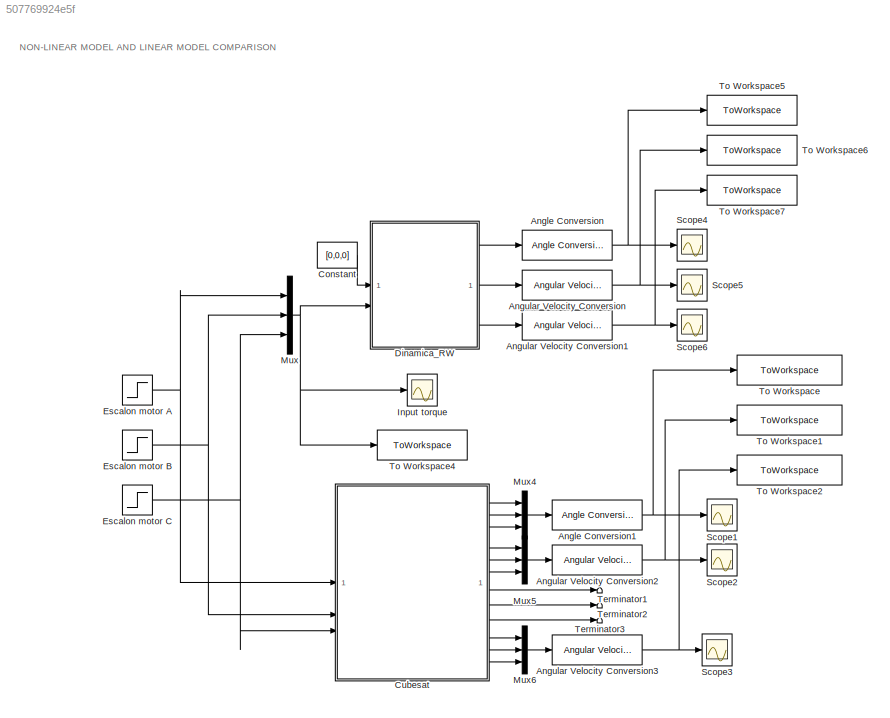
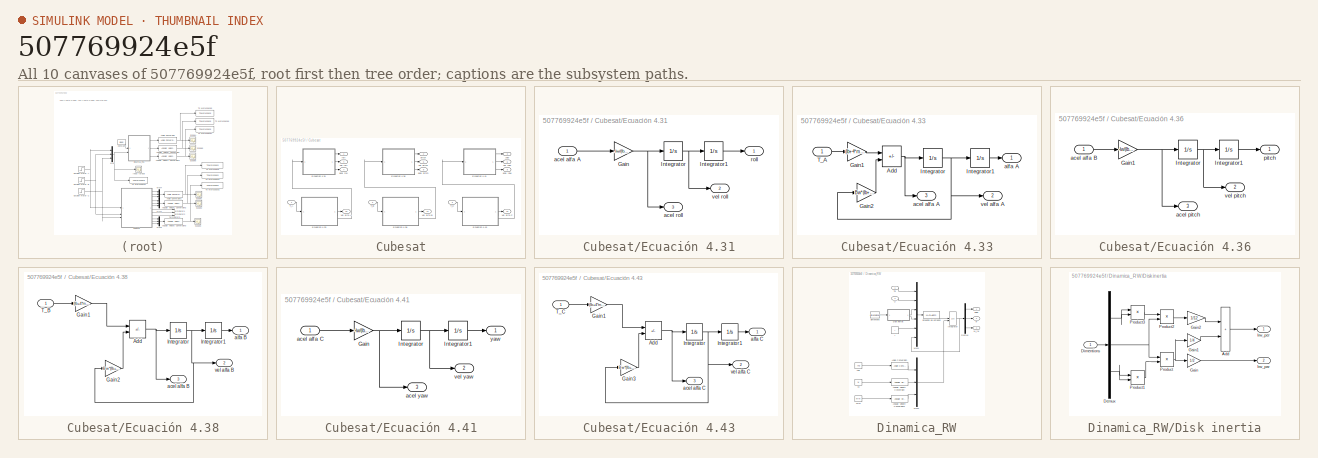
[diagram: thumbnail index - all 10 canvases of the model, root first then tree order]
MODEL slx_507769924e5f
KIND model
CONFIG AbsTol = auto
CONFIG EnableMultiTasking = off
CONFIG FixedStep = auto
CONFIG MaxStep = auto
CONFIG MinStep = auto
CONFIG RelTol = 1e-3
CONFIG SampleTimeConstraint = Unconstrained
CONFIG SolverName = VariableStepAuto
CONFIG StartTime = 0.0
CONFIG StopTime = 10.0
BLOCK [Reference] Angle Conversion  REF=aerolibconvert2/Angle Conversion
  SourceBlock = aerolibconvert2/Angle Conversion
  SourceType = Angle Conversion
BLOCK [Reference] Angle Conversion1  REF=aerolibconvert2/Angle Conversion
  SourceBlock = aerolibconvert2/Angle Conversion
  SourceType = Angle Conversion
BLOCK [Reference] Angular Velocity Conversion  REF=aerolibconvert2/Angular Velocity
Conversion
  SourceBlock = aerolibconvert2/Angular Velocity\nConversion
  SourceType = Angular Velocity Conversion
BLOCK [Reference] Angular Velocity Conversion1  REF=aerolibconvert2/Angular Velocity
Conversion
  SourceBlock = aerolibconvert2/Angular Velocity\nConversion
  SourceType = Angular Velocity Conversion
BLOCK [Reference] Angular Velocity Conversion2  REF=aerolibconvert2/Angular Velocity
Conversion
  SourceBlock = aerolibconvert2/Angular Velocity\nConversion
  SourceType = Angular Velocity Conversion
BLOCK [Reference] Angular Velocity Conversion3  REF=aerolibconvert2/Angular Velocity
Conversion
  SourceBlock = aerolibconvert2/Angular Velocity\nConversion
  SourceType = Angular Velocity Conversion
BLOCK [Constant] Constant
  Value = [0,0,0]
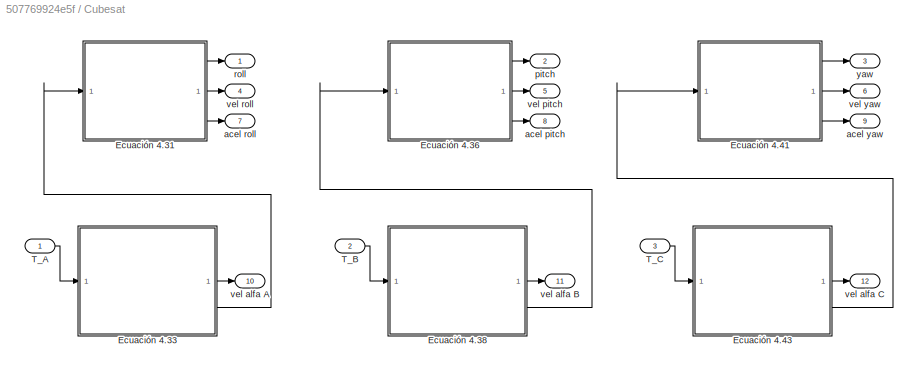
BLOCK [SubSystem] Cubesat
BLOCK [SubSystem] Cubesat/Ecuación 4.31
BLOCK [Gain] Cubesat/Ecuación 4.31/Gain
  Gain = -Iw/(Ib+4*mw*(lw)^2+Iw)
BLOCK [Integrator] Cubesat/Ecuación 4.31/Integrator
BLOCK [Integrator] Cubesat/Ecuación 4.31/Integrator1
BLOCK [Inport] Cubesat/Ecuación 4.31/acel alfa A
BLOCK [Outport] Cubesat/Ecuación 4.31/acel roll
  Port = 3
BLOCK [Outport] Cubesat/Ecuación 4.31/roll
BLOCK [Outport] Cubesat/Ecuación 4.31/vel roll
  Port = 2
BLOCK [SubSystem] Cubesat/Ecuación 4.33
BLOCK [Sum] Cubesat/Ecuación 4.33/Add
  IconShape = rectangular
  Inputs = +-
BLOCK [Gain] Cubesat/Ecuación 4.33/Gain1
  Gain = (Ib+4*mw*(lw)^2+Iw)/(Iw*(Ib+4*mw*(lw)^2))
BLOCK [Gain] Cubesat/Ecuación 4.33/Gain2
  Gain = Bw*(Ib+4*mw*(lw)^2+Iw)/(Iw*(Ib+4*mw*(lw)^2))
BLOCK [Integrator] Cubesat/Ecuación 4.33/Integrator
BLOCK [Integrator] Cubesat/Ecuación 4.33/Integrator1
BLOCK [Inport] Cubesat/Ecuación 4.33/T_A
BLOCK [Outport] Cubesat/Ecuación 4.33/acel alfa A
  Port = 3
BLOCK [Outport] Cubesat/Ecuación 4.33/alfa A
BLOCK [Outport] Cubesat/Ecuación 4.33/vel alfa A
  Port = 2
BLOCK [SubSystem] Cubesat/Ecuación 4.36
BLOCK [Gain] Cubesat/Ecuación 4.36/Gain1
  Gain = -Iw/(Ib+4*mw*(lw)^2+Iw)
BLOCK [Integrator] Cubesat/Ecuación 4.36/Integrator
BLOCK [Integrator] Cubesat/Ecuación 4.36/Integrator1
BLOCK [Inport] Cubesat/Ecuación 4.36/acel alfa B
BLOCK [Outport] Cubesat/Ecuación 4.36/acel pitch
  Port = 3
BLOCK [Outport] Cubesat/Ecuación 4.36/pitch
BLOCK [Outport] Cubesat/Ecuación 4.36/vel pitch
  Port = 2
BLOCK [SubSystem] Cubesat/Ecuación 4.38
BLOCK [Sum] Cubesat/Ecuación 4.38/Add
  IconShape = rectangular
  Inputs = +-
BLOCK [Gain] Cubesat/Ecuación 4.38/Gain1
  Gain = (Ib+4*mw*(lw)^2+Iw)/(Iw*(Ib+4*mw*(lw)^2))
BLOCK [Gain] Cubesat/Ecuación 4.38/Gain2
  Gain = Bw*(Ib+4*mw*(lw)^2+Iw)/(Iw*(Ib+4*mw*(lw)^2))
BLOCK [Integrator] Cubesat/Ecuación 4.38/Integrator
BLOCK [Integrator] Cubesat/Ecuación 4.38/Integrator1
BLOCK [Inport] Cubesat/Ecuación 4.38/T_B
BLOCK [Outport] Cubesat/Ecuación 4.38/acel alfa B
  Port = 3
BLOCK [Outport] Cubesat/Ecuación 4.38/alfa B
BLOCK [Outport] Cubesat/Ecuación 4.38/vel alfa B
  Port = 2
BLOCK [SubSystem] Cubesat/Ecuación 4.41
BLOCK [Gain] Cubesat/Ecuación 4.41/Gain
  Gain = -Iw/(Ib+4*mw*(lw)^2+Iw)
BLOCK [Integrator] Cubesat/Ecuación 4.41/Integrator
BLOCK [Integrator] Cubesat/Ecuación 4.41/Integrator1
BLOCK [Inport] Cubesat/Ecuación 4.41/acel alfa C
BLOCK [Outport] Cubesat/Ecuación 4.41/acel yaw
  Port = 3
BLOCK [Outport] Cubesat/Ecuación 4.41/vel yaw
  Port = 2
BLOCK [Outport] Cubesat/Ecuación 4.41/yaw
BLOCK [SubSystem] Cubesat/Ecuación 4.43
BLOCK [Sum] Cubesat/Ecuación 4.43/Add
  IconShape = rectangular
  Inputs = +-
BLOCK [Gain] Cubesat/Ecuación 4.43/Gain1
  Gain = (Ib+4*mw*(lw)^2+Iw)/(Iw*(Ib+4*mw*(lw)^2))
BLOCK [Gain] Cubesat/Ecuación 4.43/Gain3
  Gain = Bw*(Ib+4*mw*(lw)^2+Iw)/(Iw*(Ib+4*mw*(lw)^2))
BLOCK [Integrator] Cubesat/Ecuación 4.43/Integrator
BLOCK [Integrator] Cubesat/Ecuación 4.43/Integrator1
BLOCK [Inport] Cubesat/Ecuación 4.43/T_C
BLOCK [Outport] Cubesat/Ecuación 4.43/acel alfa C
  Port = 3
BLOCK [Outport] Cubesat/Ecuación 4.43/alfa C
BLOCK [Outport] Cubesat/Ecuación 4.43/vel alfa C
  Port = 2
BLOCK [Inport] Cubesat/T_A
BLOCK [Inport] Cubesat/T_B
  Port = 2
BLOCK [Inport] Cubesat/T_C
  Port = 3
BLOCK [Outport] Cubesat/acel pitch
  Port = 8
BLOCK [Outport] Cubesat/acel roll
  Port = 7
BLOCK [Outport] Cubesat/acel yaw
  Port = 9
BLOCK [Outport] Cubesat/pitch
  Port = 2
BLOCK [Outport] Cubesat/roll
BLOCK [Outport] Cubesat/vel alfa A
  Port = 10
BLOCK [Outport] Cubesat/vel alfa B
  Port = 11
BLOCK [Outport] Cubesat/vel alfa C
  Port = 12
BLOCK [Outport] Cubesat/vel pitch
  Port = 5
BLOCK [Outport] Cubesat/vel roll
  Port = 4
BLOCK [Outport] Cubesat/vel yaw
  Port = 6
BLOCK [Outport] Cubesat/yaw
  Port = 3
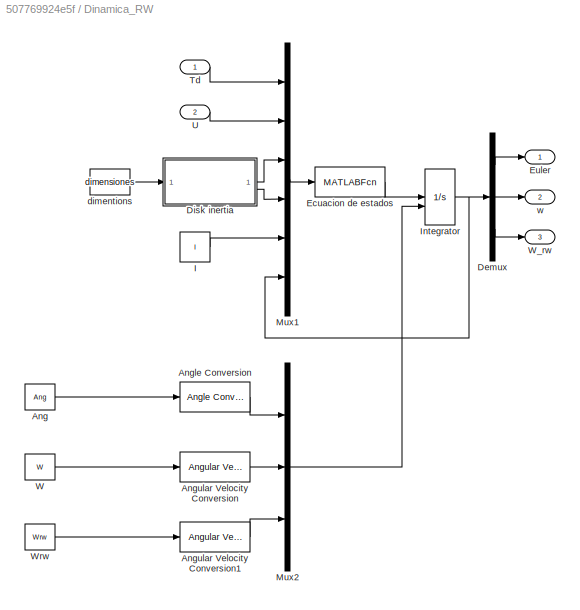
BLOCK [SubSystem] Dinamica_RW
BLOCK [Constant] Dinamica_RW/Ang
  Value = Ang
BLOCK [Reference] Dinamica_RW/Angle Conversion  REF=aerolibconvert2/Angle Conversion
  SourceBlock = aerolibconvert2/Angle Conversion
  SourceType = Angle Conversion
BLOCK [Reference] Dinamica_RW/Angular Velocity Conversion  REF=aerolibconvert2/Angular Velocity
Conversion
  SourceBlock = aerolibconvert2/Angular Velocity\nConversion
  SourceType = Angular Velocity Conversion
BLOCK [Reference] Dinamica_RW/Angular Velocity Conversion1  REF=aerolibconvert2/Angular Velocity
Conversion
  SourceBlock = aerolibconvert2/Angular Velocity\nConversion
  SourceType = Angular Velocity Conversion
BLOCK [Demux] Dinamica_RW/Demux
  Outputs = 3
BLOCK [SubSystem] Dinamica_RW/Disk inertia
  NameLocation = top
BLOCK [Sum] Dinamica_RW/Disk inertia/Add
  IconShape = rectangular
BLOCK [Demux] Dinamica_RW/Disk inertia/Demux
  Outputs = 3
BLOCK [Inport] Dinamica_RW/Disk inertia/Dimentions
BLOCK [Gain] Dinamica_RW/Disk inertia/Gain
  Gain = 1/2
BLOCK [Gain] Dinamica_RW/Disk inertia/Gain1
  Gain = 1/4
BLOCK [Gain] Dinamica_RW/Disk inertia/Gain2
  Gain = 1/12
BLOCK [Outport] Dinamica_RW/Disk inertia/Irw_par
  Port = 2
BLOCK [Outport] Dinamica_RW/Disk inertia/Irw_per
BLOCK [Product] Dinamica_RW/Disk inertia/Product
BLOCK [Product] Dinamica_RW/Disk inertia/Product1
BLOCK [Product] Dinamica_RW/Disk inertia/Product2
BLOCK [Product] Dinamica_RW/Disk inertia/Product3
BLOCK [MATLABFcn] Dinamica_RW/Ecuacion de estados
  MATLABFcn = Equation_state_Euler
BLOCK [Outport] Dinamica_RW/Euler
BLOCK [Constant] Dinamica_RW/I
  Value = I
BLOCK [Integrator] Dinamica_RW/Integrator
  InitialCondition = InitialCondition
  InitialConditionSource = external
BLOCK [Mux] Dinamica_RW/Mux1
  DisplayOption = bar
  Inputs = 6
BLOCK [Mux] Dinamica_RW/Mux2
  DisplayOption = bar
  Inputs = 3
BLOCK [Inport] Dinamica_RW/Td
BLOCK [Inport] Dinamica_RW/U
  Port = 2
BLOCK [Constant] Dinamica_RW/W
  Value = W
BLOCK [Outport] Dinamica_RW/W_rw
  Port = 3
BLOCK [Constant] Dinamica_RW/Wrw
  Value = Wrw
BLOCK [Constant] Dinamica_RW/dimentions
  Value = dimensiones
BLOCK [Outport] Dinamica_RW/w 
  Port = 2
BLOCK [Step] Escalon motor A
  After = 0
  Before = 0.007
  SampleTime = 0.01
BLOCK [Step] Escalon motor B
  After = 0
  SampleTime = 0.01
BLOCK [Step] Escalon motor C
  After = 0
  SampleTime = 0.01
BLOCK [Scope] Input torque
  Floating = off
  NumInputPorts = 1
  ScopeSpecificationString = Simulink.scopes.TimeScopeBlockCfg('CurrentConfiguration', extmgr.ConfigurationSet(extmgr.Configuration('Core','General UI',true),extmgr.Configuration('Core','Source UI',true),extmgr.Configuration('Sources','WiredSimulink',true,'DataLoggingVariableName','ScopeData3','DataLogging',true),extmgr.Configuration('Visuals','Time Domain',true,'SerializedDisplays',{struct('MinYLimReal','-0.00000012','MaxYLi...<+1615ch>
BLOCK [Mux] Mux
  DisplayOption = bar
  Inputs = 3
BLOCK [Mux] Mux4
  DisplayOption = bar
  Inputs = 3
BLOCK [Mux] Mux5
  DisplayOption = bar
  Inputs = 3
BLOCK [Mux] Mux6
  DisplayOption = bar
  Inputs = 3
BLOCK [Scope] Scope1
  Floating = off
  NumInputPorts = 1
  ScopeSpecificationString = Simulink.scopes.TimeScopeBlockCfg('CurrentConfiguration', extmgr.ConfigurationSet(extmgr.Configuration('Core','General UI',true),extmgr.Configuration('Core','Source UI',true),extmgr.Configuration('Sources','WiredSimulink',true,'DataLoggingVariableName','ScopeData4','DataLogging',true),extmgr.Configuration('Visuals','Time Domain',true,'SerializedDisplays',{struct('MinYLimReal','-416.8159','MaxYLimR...<+1713ch>
BLOCK [Scope] Scope2
  Floating = off
  NumInputPorts = 1
  ScopeSpecificationString = Simulink.scopes.TimeScopeBlockCfg('CurrentConfiguration', extmgr.ConfigurationSet(extmgr.Configuration('Core','General UI',true),extmgr.Configuration('Core','Source UI',true),extmgr.Configuration('Sources','WiredSimulink',true,'DataLoggingVariableName','ScopeData5','DataLogging',true),extmgr.Configuration('Visuals','Time Domain',true,'SerializedDisplays',{struct('MinYLimReal','-13.67977','MaxYLimR...<+1506ch>
BLOCK [Scope] Scope3
  Floating = off
  NumInputPorts = 1
  ScopeSpecificationString = Simulink.scopes.TimeScopeBlockCfg('CurrentConfiguration', extmgr.ConfigurationSet(extmgr.Configuration('Core','General UI',true),extmgr.Configuration('Core','Source UI',true),extmgr.Configuration('Sources','WiredSimulink',true,'DataLoggingVariableName','ScopeData6','DataLogging',true,'DataLoggingLimitDataPoints',true),extmgr.Configuration('Visuals','Time Domain',true,'SerializedDisplays',{struct('...<+1529ch>
BLOCK [Scope] Scope4
  Floating = off
  NumInputPorts = 1
  ScopeSpecificationString = Simulink.scopes.TimeScopeBlockCfg('CurrentConfiguration', extmgr.ConfigurationSet(extmgr.Configuration('Core','General UI',true),extmgr.Configuration('Core','Source UI',true),extmgr.Configuration('Sources','WiredSimulink',true,'DataLoggingVariableName','ScopeData8','DataLogging',true),extmgr.Configuration('Visuals','Time Domain',true,'SerializedDisplays',{struct('MinYLimReal','-535.60179','MaxYLim...<+1945ch>
BLOCK [Scope] Scope5
  Floating = off
  NumInputPorts = 1
  ScopeSpecificationString = Simulink.scopes.TimeScopeBlockCfg('CurrentConfiguration', extmgr.ConfigurationSet(extmgr.Configuration('Core','General UI',true),extmgr.Configuration('Core','Source UI',true),extmgr.Configuration('Sources','WiredSimulink',true,'DataLoggingVariableName','ScopeData9','DataLogging',true),extmgr.Configuration('Visuals','Time Domain',true,'SerializedDisplays',{struct('MinYLimReal','-13.67977','MaxYLimR...<+1484ch>
BLOCK [Scope] Scope6
  Floating = off
  NumInputPorts = 1
  ScopeSpecificationString = Simulink.scopes.TimeScopeBlockCfg('CurrentConfiguration', extmgr.ConfigurationSet(extmgr.Configuration('Core','General UI',true),extmgr.Configuration('Core','Source UI',true),extmgr.Configuration('Sources','WiredSimulink',true,'DataLoggingVariableName','ScopeData10','DataLogging',true,'DataLoggingLimitDataPoints',true),extmgr.Configuration('Visuals','Time Domain',true,'SerializedDisplays',{struct(...<+1530ch>
BLOCK [Terminator] Terminator1
BLOCK [Terminator] Terminator2
BLOCK [Terminator] Terminator3
BLOCK [ToWorkspace] To Workspace
  FixptAsFi = on
  MaxDataPoints = inf
  SampleTime = -1
  VariableName = Euler
BLOCK [ToWorkspace] To Workspace1
  FixptAsFi = on
  MaxDataPoints = inf
  SampleTime = -1
  VariableName = angularRate
BLOCK [ToWorkspace] To Workspace2
  FixptAsFi = on
  MaxDataPoints = inf
  SampleTime = -1
  VariableName = RwRate
BLOCK [ToWorkspace] To Workspace4
  FixptAsFi = on
  MaxDataPoints = inf
  SampleTime = -1
  VariableName = Torque
BLOCK [ToWorkspace] To Workspace5
  FixptAsFi = on
  MaxDataPoints = inf
  SampleTime = -1
  VariableName = nonLinearEuler
BLOCK [ToWorkspace] To Workspace6
  FixptAsFi = on
  MaxDataPoints = inf
  SampleTime = -1
  VariableName = nonLinearRates
BLOCK [ToWorkspace] To Workspace7
  FixptAsFi = on
  MaxDataPoints = inf
  SampleTime = -1
  VariableName = nonLinearRwRates
ANNOTATION (root): NON-LINEAR MODEL AND LINEAR MODEL COMPARISON
NET Angle Conversion1:1 -> Scope1:1, To Workspace:1
NET Angle Conversion:1 -> Scope4:1, To Workspace5:1
NET Angular Velocity Conversion1:1 -> Scope6:1, To Workspace7:1
NET Angular Velocity Conversion2:1 -> Scope2:1, To Workspace1:1
NET Angular Velocity Conversion3:1 -> Scope3:1, To Workspace2:1
NET Angular Velocity Conversion:1 -> Scope5:1, To Workspace6:1
LINE Constant:1 -> Dinamica_RW:1
NET Cubesat/Ecuación 4.31/Gain:1 -> Cubesat/Ecuación 4.31/Integrator:1, Cubesat/Ecuación 4.31/acel roll:1
LINE Cubesat/Ecuación 4.31/Integrator1:1 -> Cubesat/Ecuación 4.31/roll:1
NET Cubesat/Ecuación 4.31/Integrator:1 -> Cubesat/Ecuación 4.31/Integrator1:1, Cubesat/Ecuación 4.31/vel roll:1
LINE Cubesat/Ecuación 4.31/acel alfa A:1 -> Cubesat/Ecuación 4.31/Gain:1
LINE Cubesat/Ecuación 4.31:1 -> Cubesat/roll:1
LINE Cubesat/Ecuación 4.31:2 -> Cubesat/vel roll:1
LINE Cubesat/Ecuación 4.31:3 -> Cubesat/acel roll:1
NET Cubesat/Ecuación 4.33/Add:1 -> Cubesat/Ecuación 4.33/Integrator:1, Cubesat/Ecuación 4.33/acel alfa A:1
LINE Cubesat/Ecuación 4.33/Gain1:1 -> Cubesat/Ecuación 4.33/Add:1
LINE Cubesat/Ecuación 4.33/Gain2:1 -> Cubesat/Ecuación 4.33/Add:2
LINE Cubesat/Ecuación 4.33/Integrator1:1 -> Cubesat/Ecuación 4.33/alfa A:1
NET Cubesat/Ecuación 4.33/Integrator:1 -> Cubesat/Ecuación 4.33/Gain2:1, Cubesat/Ecuación 4.33/Integrator1:1, Cubesat/Ecuación 4.33/vel alfa A:1
LINE Cubesat/Ecuación 4.33/T_A:1 -> Cubesat/Ecuación 4.33/Gain1:1
LINE Cubesat/Ecuación 4.33:2 -> Cubesat/vel alfa A:1
LINE Cubesat/Ecuación 4.33:3 -> Cubesat/Ecuación 4.31:1
NET Cubesat/Ecuación 4.36/Gain1:1 -> Cubesat/Ecuación 4.36/Integrator:1, Cubesat/Ecuación 4.36/acel pitch:1
LINE Cubesat/Ecuación 4.36/Integrator1:1 -> Cubesat/Ecuación 4.36/pitch:1
NET Cubesat/Ecuación 4.36/Integrator:1 -> Cubesat/Ecuación 4.36/Integrator1:1, Cubesat/Ecuación 4.36/vel pitch:1
LINE Cubesat/Ecuación 4.36/acel alfa B:1 -> Cubesat/Ecuación 4.36/Gain1:1
LINE Cubesat/Ecuación 4.36:1 -> Cubesat/pitch:1
LINE Cubesat/Ecuación 4.36:2 -> Cubesat/vel pitch:1
LINE Cubesat/Ecuación 4.36:3 -> Cubesat/acel pitch:1
NET Cubesat/Ecuación 4.38/Add:1 -> Cubesat/Ecuación 4.38/Integrator:1, Cubesat/Ecuación 4.38/acel alfa B:1
LINE Cubesat/Ecuación 4.38/Gain1:1 -> Cubesat/Ecuación 4.38/Add:1
LINE Cubesat/Ecuación 4.38/Gain2:1 -> Cubesat/Ecuación 4.38/Add:2
LINE Cubesat/Ecuación 4.38/Integrator1:1 -> Cubesat/Ecuación 4.38/alfa B:1
NET Cubesat/Ecuación 4.38/Integrator:1 -> Cubesat/Ecuación 4.38/Gain2:1, Cubesat/Ecuación 4.38/Integrator1:1, Cubesat/Ecuación 4.38/vel alfa B:1
LINE Cubesat/Ecuación 4.38/T_B:1 -> Cubesat/Ecuación 4.38/Gain1:1
LINE Cubesat/Ecuación 4.38:2 -> Cubesat/vel alfa B:1
LINE Cubesat/Ecuación 4.38:3 -> Cubesat/Ecuación 4.36:1
NET Cubesat/Ecuación 4.41/Gain:1 -> Cubesat/Ecuación 4.41/Integrator:1, Cubesat/Ecuación 4.41/acel yaw:1
LINE Cubesat/Ecuación 4.41/Integrator1:1 -> Cubesat/Ecuación 4.41/yaw:1
NET Cubesat/Ecuación 4.41/Integrator:1 -> Cubesat/Ecuación 4.41/Integrator1:1, Cubesat/Ecuación 4.41/vel yaw:1
LINE Cubesat/Ecuación 4.41/acel alfa C:1 -> Cubesat/Ecuación 4.41/Gain:1
LINE Cubesat/Ecuación 4.41:1 -> Cubesat/yaw:1
LINE Cubesat/Ecuación 4.41:2 -> Cubesat/vel yaw:1
LINE Cubesat/Ecuación 4.41:3 -> Cubesat/acel yaw:1
NET Cubesat/Ecuación 4.43/Add:1 -> Cubesat/Ecuación 4.43/Integrator:1, Cubesat/Ecuación 4.43/acel alfa C:1
LINE Cubesat/Ecuación 4.43/Gain1:1 -> Cubesat/Ecuación 4.43/Add:1
LINE Cubesat/Ecuación 4.43/Gain3:1 -> Cubesat/Ecuación 4.43/Add:2
LINE Cubesat/Ecuación 4.43/Integrator1:1 -> Cubesat/Ecuación 4.43/alfa C:1
NET Cubesat/Ecuación 4.43/Integrator:1 -> Cubesat/Ecuación 4.43/Gain3:1, Cubesat/Ecuación 4.43/Integrator1:1, Cubesat/Ecuación 4.43/vel alfa C:1
LINE Cubesat/Ecuación 4.43/T_C:1 -> Cubesat/Ecuación 4.43/Gain1:1
LINE Cubesat/Ecuación 4.43:2 -> Cubesat/vel alfa C:1
LINE Cubesat/Ecuación 4.43:3 -> Cubesat/Ecuación 4.41:1
LINE Cubesat/T_A:1 -> Cubesat/Ecuación 4.33:1
LINE Cubesat/T_B:1 -> Cubesat/Ecuación 4.38:1
LINE Cubesat/T_C:1 -> Cubesat/Ecuación 4.43:1
LINE Cubesat:1 -> Mux4:1
LINE Cubesat:10 -> Mux6:1
LINE Cubesat:11 -> Mux6:2
LINE Cubesat:12 -> Mux6:3
LINE Cubesat:2 -> Mux4:2
LINE Cubesat:3 -> Mux4:3
LINE Cubesat:4 -> Mux5:1
LINE Cubesat:5 -> Mux5:2
LINE Cubesat:6 -> Mux5:3
LINE Cubesat:7 -> Terminator1:1
LINE Cubesat:8 -> Terminator2:1
LINE Cubesat:9 -> Terminator3:1
LINE Dinamica_RW/Ang:1 -> Dinamica_RW/Angle Conversion:1
LINE Dinamica_RW/Angle Conversion:1 -> Dinamica_RW/Mux2:1
LINE Dinamica_RW/Angular Velocity Conversion1:1 -> Dinamica_RW/Mux2:3
LINE Dinamica_RW/Angular Velocity Conversion:1 -> Dinamica_RW/Mux2:2
LINE Dinamica_RW/Demux:1 -> Dinamica_RW/Euler:1
LINE Dinamica_RW/Demux:2 -> Dinamica_RW/w :1
LINE Dinamica_RW/Demux:3 -> Dinamica_RW/W_rw:1
LINE Dinamica_RW/Disk inertia/Add:1 -> Dinamica_RW/Disk inertia/Irw_per:1
NET Dinamica_RW/Disk inertia/Demux:1 -> Dinamica_RW/Disk inertia/Product3:1, Dinamica_RW/Disk inertia/Product3:2
NET Dinamica_RW/Disk inertia/Demux:2 -> Dinamica_RW/Disk inertia/Product2:2, Dinamica_RW/Disk inertia/Product:1
NET Dinamica_RW/Disk inertia/Demux:3 -> Dinamica_RW/Disk inertia/Product1:1, Dinamica_RW/Disk inertia/Product1:2
LINE Dinamica_RW/Disk inertia/Dimentions:1 -> Dinamica_RW/Disk inertia/Demux:1
LINE Dinamica_RW/Disk inertia/Gain1:1 -> Dinamica_RW/Disk inertia/Add:2
LINE Dinamica_RW/Disk inertia/Gain2:1 -> Dinamica_RW/Disk inertia/Add:1
LINE Dinamica_RW/Disk inertia/Gain:1 -> Dinamica_RW/Disk inertia/Irw_par:1
LINE Dinamica_RW/Disk inertia/Product1:1 -> Dinamica_RW/Disk inertia/Product:2
LINE Dinamica_RW/Disk inertia/Product2:1 -> Dinamica_RW/Disk inertia/Gain2:1
LINE Dinamica_RW/Disk inertia/Product3:1 -> Dinamica_RW/Disk inertia/Product2:1
NET Dinamica_RW/Disk inertia/Product:1 -> Dinamica_RW/Disk inertia/Gain1:1, Dinamica_RW/Disk inertia/Gain:1
LINE Dinamica_RW/Disk inertia:1 -> Dinamica_RW/Mux1:3
LINE Dinamica_RW/Disk inertia:2 -> Dinamica_RW/Mux1:4
LINE Dinamica_RW/Ecuacion de estados:1 -> Dinamica_RW/Integrator:1
LINE Dinamica_RW/I:1 -> Dinamica_RW/Mux1:5
NET Dinamica_RW/Integrator:1 -> Dinamica_RW/Demux:1, Dinamica_RW/Mux1:6
LINE Dinamica_RW/Mux1:1 -> Dinamica_RW/Ecuacion de estados:1
LINE Dinamica_RW/Mux2:1 -> Dinamica_RW/Integrator:2
LINE Dinamica_RW/Td:1 -> Dinamica_RW/Mux1:1
LINE Dinamica_RW/U:1 -> Dinamica_RW/Mux1:2
LINE Dinamica_RW/W:1 -> Dinamica_RW/Angular Velocity Conversion:1
LINE Dinamica_RW/Wrw:1 -> Dinamica_RW/Angular Velocity Conversion1:1
LINE Dinamica_RW/dimentions:1 -> Dinamica_RW/Disk inertia:1
LINE Dinamica_RW:1 -> Angle Conversion:1
LINE Dinamica_RW:2 -> Angular Velocity Conversion:1
LINE Dinamica_RW:3 -> Angular Velocity Conversion1:1
NET Escalon motor A:1 -> Cubesat:1, Mux:1
NET Escalon motor B:1 -> Cubesat:2, Mux:2
NET Escalon motor C:1 -> Cubesat:3, Mux:3
LINE Mux4:1 -> Angle Conversion1:1
LINE Mux5:1 -> Angular Velocity Conversion2:1
LINE Mux6:1 -> Angular Velocity Conversion3:1
NET Mux:1 -> Dinamica_RW:2, Input torque:1, To Workspace4:1
note: NET lines group one-source signal fan-out (src -> all destinations, sorted); 1:1 wires keep LINE
